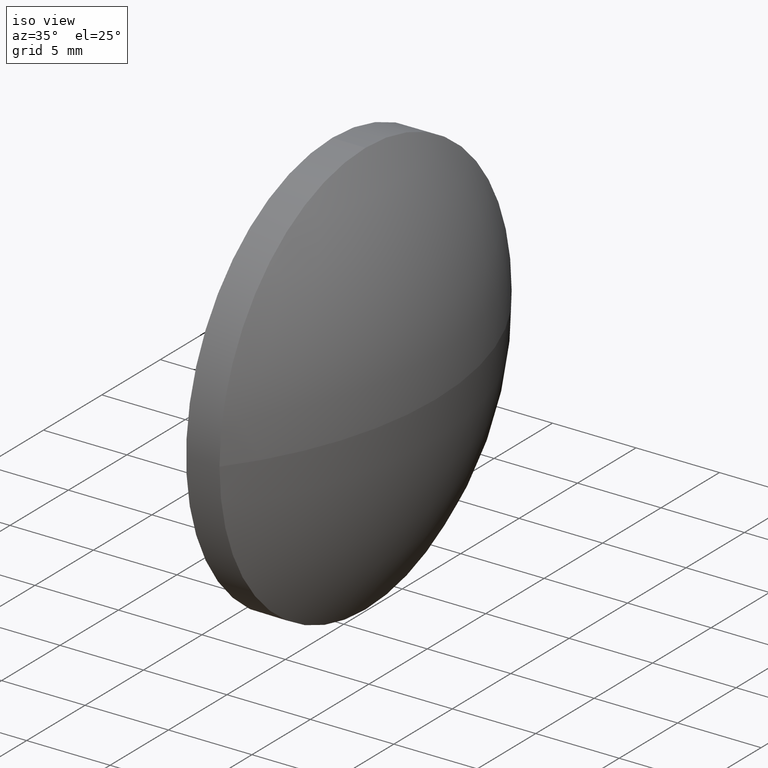
[diagram: clean part render]
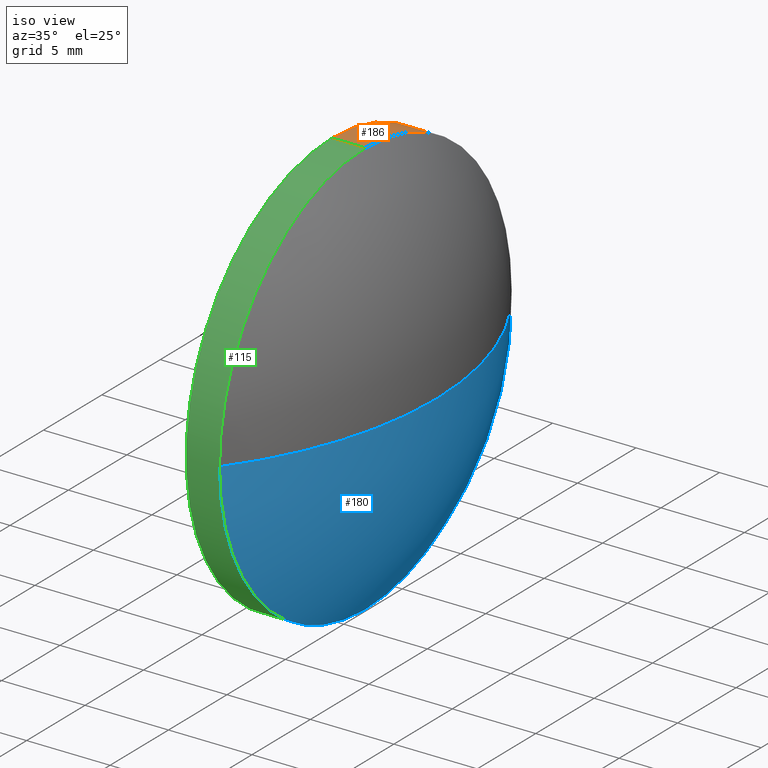
[diagram: same view with three faces highlighted in distinct colors, each labeled with its STEP entity id]
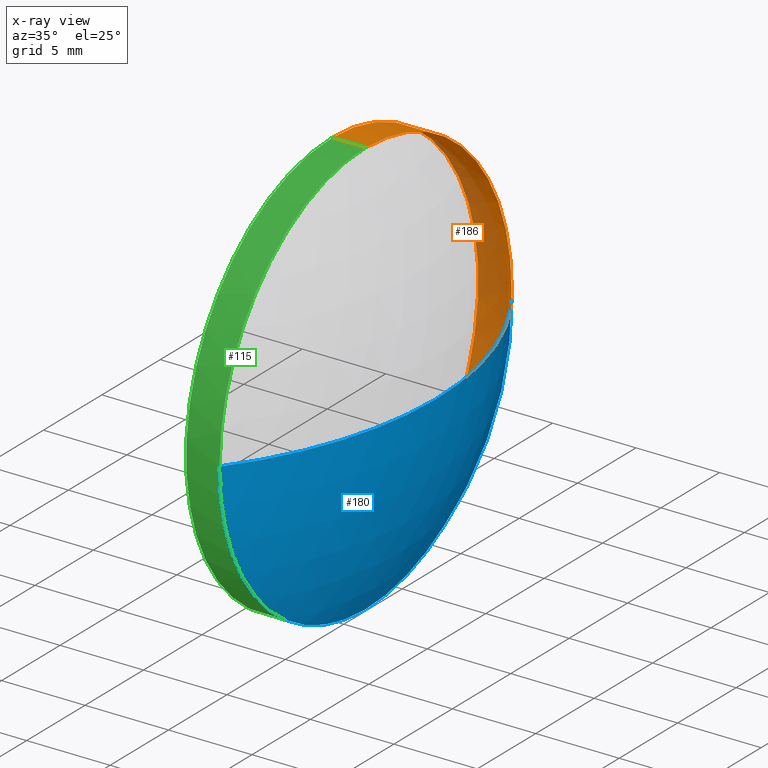
[diagram: x-ray of the same camera — body ghosted, the three highlighted faces saturated]
A machine part, iso view with three faces highlighted in distinct colors.
The next image is the same camera in x-ray (body ghosted, the three faces saturated) — at least one of them is partly hidden behind the body in this view.
Their STEP definitions:

[orange] entity #186 — the highlighted cylindrical surface (partial cylindrical patch) has radius 12.5 mm, axis along (-1, -0, -0).
#3 = VECTOR ( 'NONE', #138, 1000.000000000000000 ) ;
#6 = DIRECTION ( 'NONE',  ( -1.000000000000000000, -0.0000000000000000000, -0.0000000000000000000 ) ) ;
#7 = CARTESIAN_POINT ( 'NONE',  ( 563.5535889143861800, 156.0724403089788000, 12.50000000000001100 ) ) ;
#19 = DIRECTION ( 'NONE',  ( 0.0000000000000000000, 0.0000000000000000000, 1.000000000000000000 ) ) ;
#24 = CARTESIAN_POINT ( 'NONE',  ( 565.5535889143861800, 156.0724403089788000, 0.0000000000000000000 ) ) ;
#29 = ORIENTED_EDGE ( 'NONE', *, *, #140, .T. ) ;
#35 = CARTESIAN_POINT ( 'NONE',  ( 565.5535889143861800, 156.0724403089788000, 12.50000000000001100 ) ) ;
#39 = DIRECTION ( 'NONE',  ( 0.0000000000000000000, 0.0000000000000000000, 1.000000000000000000 ) ) ;
#41 = VERTEX_POINT ( 'NONE', #86 ) ;
#47 = AXIS2_PLACEMENT_3D ( 'NONE', #130, #173, #161 ) ;
#51 = EDGE_LOOP ( 'NONE', ( #183, #29, #105, #73, #118 ) ) ;
#54 = CARTESIAN_POINT ( 'NONE',  ( 563.5535889143861800, 156.0724403089788000, 0.0000000000000000000 ) ) ;
#55 = VERTEX_POINT ( 'NONE', #35 ) ;
#61 = VERTEX_POINT ( 'NONE', #75 ) ;
#64 = CIRCLE ( 'NONE', #94, 12.50000000000001100 ) ;
#70 = DIRECTION ( 'NONE',  ( -1.000000000000000000, -0.0000000000000000000, -0.0000000000000000000 ) ) ;
#73 = ORIENTED_EDGE ( 'NONE', *, *, #92, .F. ) ;
#75 = CARTESIAN_POINT ( 'NONE',  ( 565.5535889143861800, 156.0724403089788000, -12.50000000000001100 ) ) ;
#83 = CYLINDRICAL_SURFACE ( 'NONE', #47, 12.50000000000001100 ) ;
#86 = CARTESIAN_POINT ( 'NONE',  ( 563.5535889143861800, 156.0724403089788000, -12.50000000000001100 ) ) ;
#88 = DIRECTION ( 'NONE',  ( -1.000000000000000000, -0.0000000000000000000, -0.0000000000000000000 ) ) ;
#92 = EDGE_CURVE ( 'NONE', #55, #145, #184, .T. ) ;
#93 = FACE_OUTER_BOUND ( 'NONE', #51, .T. ) ;
#94 = AXIS2_PLACEMENT_3D ( 'NONE', #24, #88, #39 ) ;
#100 = CARTESIAN_POINT ( 'NONE',  ( 562.0415576724963100, 156.0724403089788000, -12.50000000000001100 ) ) ;
#101 = CIRCLE ( 'NONE', #150, 12.50000000000001100 ) ;
#105 = ORIENTED_EDGE ( 'NONE', *, *, #166, .F. ) ;
#108 = VERTEX_POINT ( 'NONE', #109 ) ;
#109 = CARTESIAN_POINT ( 'NONE',  ( 565.5535889143861800, 168.5724403089787700, 0.0000000000000000000 ) ) ;
#117 = LINE ( 'NONE', #100, #144 ) ;
#118 = ORIENTED_EDGE ( 'NONE', *, *, #172, .T. ) ;
#122 = DIRECTION ( 'NONE',  ( 0.0000000000000000000, 0.0000000000000000000, 1.000000000000000000 ) ) ;
#123 = CARTESIAN_POINT ( 'NONE',  ( 562.0415576724963100, 156.0724403089788000, 12.50000000000001100 ) ) ;
#130 = CARTESIAN_POINT ( 'NONE',  ( 562.0415576724963100, 156.0724403089788000, 0.0000000000000000000 ) ) ;
#134 = AXIS2_PLACEMENT_3D ( 'NONE', #54, #70, #122 ) ;
#138 = DIRECTION ( 'NONE',  ( -1.000000000000000000, -0.0000000000000000000, -0.0000000000000000000 ) ) ;
#140 = EDGE_CURVE ( 'NONE', #61, #41, #117, .T. ) ;
#144 = VECTOR ( 'NONE', #151, 1000.000000000000000 ) ;
#145 = VERTEX_POINT ( 'NONE', #7 ) ;
#148 = CIRCLE ( 'NONE', #134, 12.50000000000001100 ) ;
#150 = AXIS2_PLACEMENT_3D ( 'NONE', #179, #6, #19 ) ;
#151 = DIRECTION ( 'NONE',  ( -1.000000000000000000, -0.0000000000000000000, -0.0000000000000000000 ) ) ;
#161 = DIRECTION ( 'NONE',  ( 0.0000000000000000000, 0.0000000000000000000, 1.000000000000000000 ) ) ;
#166 = EDGE_CURVE ( 'NONE', #145, #41, #148, .T. ) ;
#172 = EDGE_CURVE ( 'NONE', #55, #108, #64, .T. ) ;
#173 = DIRECTION ( 'NONE',  ( -1.000000000000000000, -0.0000000000000000000, -0.0000000000000000000 ) ) ;
#178 = EDGE_CURVE ( 'NONE', #108, #61, #101, .T. ) ;
#179 = CARTESIAN_POINT ( 'NONE',  ( 565.5535889143861800, 156.0724403089788000, 0.0000000000000000000 ) ) ;
#183 = ORIENTED_EDGE ( 'NONE', *, *, #178, .T. ) ;
#184 = LINE ( 'NONE', #123, #3 ) ;
#186 = ADVANCED_FACE ( 'NONE', ( #93 ), #83, .T. ) ;

[blue] entity #180 — the highlighted spherical surface has radius 20.662 mm.
#1 = EDGE_CURVE ( 'NONE', #61, #33, #84, .T. ) ;
#2 = CARTESIAN_POINT ( 'NONE',  ( 565.5535889143861800, 143.5724403089787700, -1.530808498934189200E-015 ) ) ;
#4 = ORIENTED_EDGE ( 'NONE', *, *, #58, .T. ) ;
#5 = AXIS2_PLACEMENT_3D ( 'NONE', #68, #126, #48 ) ;
#6 = DIRECTION ( 'NONE',  ( -1.000000000000000000, -0.0000000000000000000, -0.0000000000000000000 ) ) ;
#14 = EDGE_CURVE ( 'NONE', #143, #108, #185, .T. ) ;
#19 = DIRECTION ( 'NONE',  ( 0.0000000000000000000, 0.0000000000000000000, 1.000000000000000000 ) ) ;
#23 = AXIS2_PLACEMENT_3D ( 'NONE', #146, #169, #95 ) ;
#26 = EDGE_LOOP ( 'NONE', ( #62, #4, #136, #177 ) ) ;
#33 = VERTEX_POINT ( 'NONE', #2 ) ;
#38 = DIRECTION ( 'NONE',  ( 0.0000000000000000000, 1.000000000000000000, 0.0000000000000000000 ) ) ;
#40 = AXIS2_PLACEMENT_3D ( 'NONE', #114, #129, #110 ) ;
#48 = DIRECTION ( 'NONE',  ( 1.000000000000000000, 0.0000000000000000000, 0.0000000000000000000 ) ) ;
#53 = CARTESIAN_POINT ( 'NONE',  ( 569.7635889143862200, 156.0724403089787700, 0.0000000000000000000 ) ) ;
#58 = EDGE_CURVE ( 'NONE', #143, #33, #135, .T. ) ;
#59 = SPHERICAL_SURFACE ( 'NONE', #137, 20.66200712589076400 ) ;
#61 = VERTEX_POINT ( 'NONE', #75 ) ;
#62 = ORIENTED_EDGE ( 'NONE', *, *, #14, .F. ) ;
#68 = CARTESIAN_POINT ( 'NONE',  ( 549.1015817884954200, 156.0724403089787700, 0.0000000000000000000 ) ) ;
#75 = CARTESIAN_POINT ( 'NONE',  ( 565.5535889143861800, 156.0724403089788000, -12.50000000000001100 ) ) ;
#84 = CIRCLE ( 'NONE', #23, 12.50000000000001100 ) ;
#95 = DIRECTION ( 'NONE',  ( 0.0000000000000000000, 0.0000000000000000000, 1.000000000000000000 ) ) ;
#99 = FACE_OUTER_BOUND ( 'NONE', #26, .T. ) ;
#101 = CIRCLE ( 'NONE', #150, 12.50000000000001100 ) ;
#108 = VERTEX_POINT ( 'NONE', #109 ) ;
#109 = CARTESIAN_POINT ( 'NONE',  ( 565.5535889143861800, 168.5724403089787700, 0.0000000000000000000 ) ) ;
#110 = DIRECTION ( 'NONE',  ( 0.0000000000000000000, 1.000000000000000000, 1.224646799147353700E-016 ) ) ;
#114 = CARTESIAN_POINT ( 'NONE',  ( 549.1015817884954200, 156.0724403089787700, 0.0000000000000000000 ) ) ;
#121 = CARTESIAN_POINT ( 'NONE',  ( 549.1015817884954200, 156.0724403089787700, 0.0000000000000000000 ) ) ;
#126 = DIRECTION ( 'NONE',  ( -0.0000000000000000000, 0.0000000000000000000, 1.000000000000000000 ) ) ;
#129 = DIRECTION ( 'NONE',  ( 0.0000000000000000000, 1.224646799147353200E-016, -1.000000000000000000 ) ) ;
#135 = CIRCLE ( 'NONE', #40, 20.66200712589075300 ) ;
#136 = ORIENTED_EDGE ( 'NONE', *, *, #1, .F. ) ;
#137 = AXIS2_PLACEMENT_3D ( 'NONE', #121, #152, #38 ) ;
#143 = VERTEX_POINT ( 'NONE', #53 ) ;
#146 = CARTESIAN_POINT ( 'NONE',  ( 565.5535889143861800, 156.0724403089788000, 0.0000000000000000000 ) ) ;
#150 = AXIS2_PLACEMENT_3D ( 'NONE', #179, #6, #19 ) ;
#152 = DIRECTION ( 'NONE',  ( -0.0000000000000000000, 0.0000000000000000000, -1.000000000000000000 ) ) ;
#169 = DIRECTION ( 'NONE',  ( -1.000000000000000000, -0.0000000000000000000, -0.0000000000000000000 ) ) ;
#177 = ORIENTED_EDGE ( 'NONE', *, *, #178, .F. ) ;
#178 = EDGE_CURVE ( 'NONE', #108, #61, #101, .T. ) ;
#179 = CARTESIAN_POINT ( 'NONE',  ( 565.5535889143861800, 156.0724403089788000, 0.0000000000000000000 ) ) ;
#180 = ADVANCED_FACE ( 'NONE', ( #99 ), #59, .T. ) ;
#185 = CIRCLE ( 'NONE', #5, 20.66200712589072500 ) ;

[green] entity #115 — the highlighted cylindrical surface (partial cylindrical patch) has radius 12.5 mm, axis along (-1, -0, -0).
#1 = EDGE_CURVE ( 'NONE', #61, #33, #84, .T. ) ;
#2 = CARTESIAN_POINT ( 'NONE',  ( 565.5535889143861800, 143.5724403089787700, -1.530808498934189200E-015 ) ) ;
#3 = VECTOR ( 'NONE', #138, 1000.000000000000000 ) ;
#7 = CARTESIAN_POINT ( 'NONE',  ( 563.5535889143861800, 156.0724403089788000, 12.50000000000001100 ) ) ;
#9 = CIRCLE ( 'NONE', #76, 12.50000000000001100 ) ;
#22 = DIRECTION ( 'NONE',  ( -1.000000000000000000, -0.0000000000000000000, -0.0000000000000000000 ) ) ;
#23 = AXIS2_PLACEMENT_3D ( 'NONE', #146, #169, #95 ) ;
#25 = CYLINDRICAL_SURFACE ( 'NONE', #104, 12.50000000000001100 ) ;
#32 = EDGE_CURVE ( 'NONE', #41, #145, #111, .T. ) ;
#33 = VERTEX_POINT ( 'NONE', #2 ) ;
#35 = CARTESIAN_POINT ( 'NONE',  ( 565.5535889143861800, 156.0724403089788000, 12.50000000000001100 ) ) ;
#36 = ORIENTED_EDGE ( 'NONE', *, *, #92, .T. ) ;
#41 = VERTEX_POINT ( 'NONE', #86 ) ;
#55 = VERTEX_POINT ( 'NONE', #35 ) ;
#61 = VERTEX_POINT ( 'NONE', #75 ) ;
#63 = CARTESIAN_POINT ( 'NONE',  ( 563.5535889143861800, 156.0724403089788000, 0.0000000000000000000 ) ) ;
#74 = AXIS2_PLACEMENT_3D ( 'NONE', #63, #119, #159 ) ;
#75 = CARTESIAN_POINT ( 'NONE',  ( 565.5535889143861800, 156.0724403089788000, -12.50000000000001100 ) ) ;
#76 = AXIS2_PLACEMENT_3D ( 'NONE', #133, #154, #171 ) ;
#78 = ORIENTED_EDGE ( 'NONE', *, *, #1, .T. ) ;
#84 = CIRCLE ( 'NONE', #23, 12.50000000000001100 ) ;
#86 = CARTESIAN_POINT ( 'NONE',  ( 563.5535889143861800, 156.0724403089788000, -12.50000000000001100 ) ) ;
#92 = EDGE_CURVE ( 'NONE', #55, #145, #184, .T. ) ;
#95 = DIRECTION ( 'NONE',  ( 0.0000000000000000000, 0.0000000000000000000, 1.000000000000000000 ) ) ;
#100 = CARTESIAN_POINT ( 'NONE',  ( 562.0415576724963100, 156.0724403089788000, -12.50000000000001100 ) ) ;
#102 = ORIENTED_EDGE ( 'NONE', *, *, #168, .T. ) ;
#104 = AXIS2_PLACEMENT_3D ( 'NONE', #132, #22, #164 ) ;
#111 = CIRCLE ( 'NONE', #74, 12.50000000000001100 ) ;
#112 = ORIENTED_EDGE ( 'NONE', *, *, #32, .F. ) ;
#115 = ADVANCED_FACE ( 'NONE', ( #162 ), #25, .T. ) ;
#116 = EDGE_LOOP ( 'NONE', ( #149, #78, #102, #36, #112 ) ) ;
#117 = LINE ( 'NONE', #100, #144 ) ;
#119 = DIRECTION ( 'NONE',  ( -1.000000000000000000, -0.0000000000000000000, -0.0000000000000000000 ) ) ;
#123 = CARTESIAN_POINT ( 'NONE',  ( 562.0415576724963100, 156.0724403089788000, 12.50000000000001100 ) ) ;
#132 = CARTESIAN_POINT ( 'NONE',  ( 562.0415576724963100, 156.0724403089788000, 0.0000000000000000000 ) ) ;
#133 = CARTESIAN_POINT ( 'NONE',  ( 565.5535889143861800, 156.0724403089788000, 0.0000000000000000000 ) ) ;
#138 = DIRECTION ( 'NONE',  ( -1.000000000000000000, -0.0000000000000000000, -0.0000000000000000000 ) ) ;
#140 = EDGE_CURVE ( 'NONE', #61, #41, #117, .T. ) ;
#144 = VECTOR ( 'NONE', #151, 1000.000000000000000 ) ;
#145 = VERTEX_POINT ( 'NONE', #7 ) ;
#146 = CARTESIAN_POINT ( 'NONE',  ( 565.5535889143861800, 156.0724403089788000, 0.0000000000000000000 ) ) ;
#149 = ORIENTED_EDGE ( 'NONE', *, *, #140, .F. ) ;
#151 = DIRECTION ( 'NONE',  ( -1.000000000000000000, -0.0000000000000000000, -0.0000000000000000000 ) ) ;
#154 = DIRECTION ( 'NONE',  ( -1.000000000000000000, -0.0000000000000000000, -0.0000000000000000000 ) ) ;
#159 = DIRECTION ( 'NONE',  ( 0.0000000000000000000, 0.0000000000000000000, 1.000000000000000000 ) ) ;
#162 = FACE_OUTER_BOUND ( 'NONE', #116, .T. ) ;
#164 = DIRECTION ( 'NONE',  ( 0.0000000000000000000, 0.0000000000000000000, 1.000000000000000000 ) ) ;
#168 = EDGE_CURVE ( 'NONE', #33, #55, #9, .T. ) ;
#169 = DIRECTION ( 'NONE',  ( -1.000000000000000000, -0.0000000000000000000, -0.0000000000000000000 ) ) ;
#171 = DIRECTION ( 'NONE',  ( 0.0000000000000000000, 0.0000000000000000000, 1.000000000000000000 ) ) ;
#184 = LINE ( 'NONE', #123, #3 ) ;